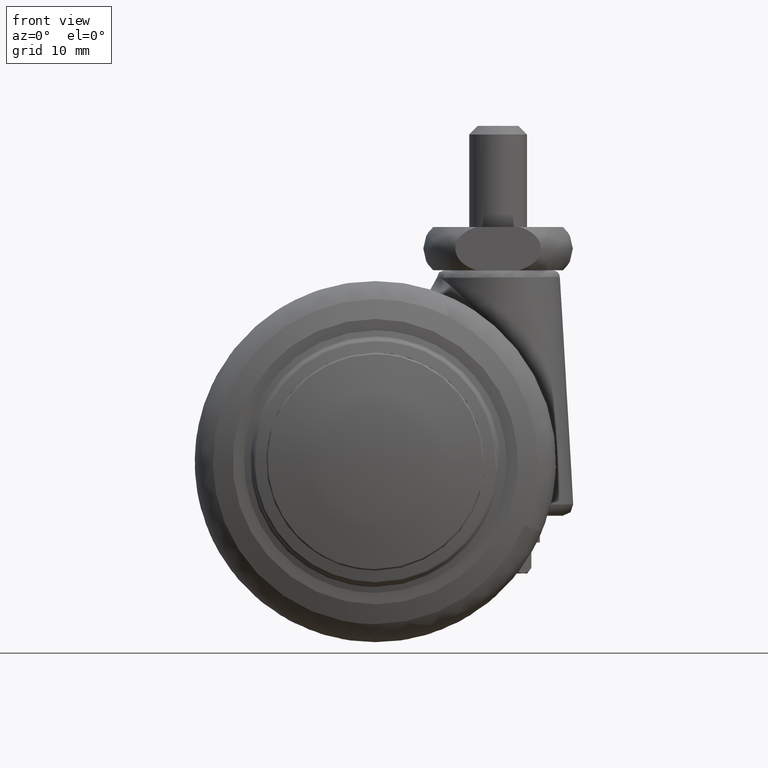
[diagram: clean part render]
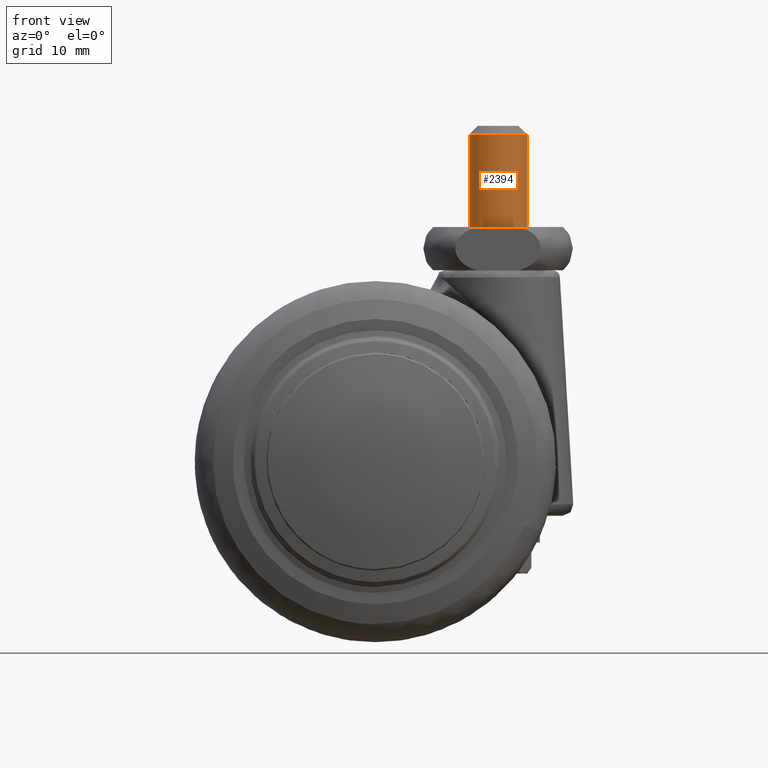
[diagram: same view with one face highlighted and labeled with its STEP entity id]
A machine part, front view. The second image highlights one B-rep face of the part: STEP entity #2394.
In plain terms, the highlighted face is a freeform B-spline surface patch.
Its self-contained STEP definition (entity closure, byte-faithful):
#2224=CARTESIAN_POINT('',(20.896872612714361,0.902432180430585,45.619999999936923));
#2225=CARTESIAN_POINT('',(21.003991040800749,0.439874574686002,45.619999999936930));
#2226=CARTESIAN_POINT('',(20.999847692256679,-0.034906141993499,45.619999999936930));
#2227=CARTESIAN_POINT('',(20.964941550263188,-4.034753834250183,45.619999999936930));
#2228=CARTESIAN_POINT('',(16.965093858006501,-3.999847692256688,45.619999999936930));
#2229=CARTESIAN_POINT('',(12.965246165749821,-3.964941550263191,45.619999999936930));
#2230=CARTESIAN_POINT('',(13.000152307743321,0.034906141993492,45.619999999936930));
#2231=CARTESIAN_POINT('',(13.035058449736812,4.034753834250176,45.619999999936930));
#2232=CARTESIAN_POINT('',(17.034906141993499,3.999847692256680,45.619999999936930));
#2233=CARTESIAN_POINT('',(20.896872612714361,0.902432180430585,32.172000002587538));
#2234=CARTESIAN_POINT('',(21.003991040800749,0.439874574686002,32.172000002587545));
#2235=CARTESIAN_POINT('',(20.999847692256679,-0.034906141993499,32.172000002587552));
#2236=CARTESIAN_POINT('',(20.964941550263188,-4.034753834250183,32.172000002587545));
#2237=CARTESIAN_POINT('',(16.965093858006501,-3.999847692256688,32.172000002587552));
#2238=CARTESIAN_POINT('',(12.965246165749821,-3.964941550263191,32.172000002587545));
#2239=CARTESIAN_POINT('',(13.000152307743321,0.034906141993492,32.172000002587552));
#2240=CARTESIAN_POINT('',(13.035058449736812,4.034753834250176,32.172000002587545));
#2241=CARTESIAN_POINT('',(17.034906141993499,3.999847692256680,32.172000002587552));
#2249=(BOUNDED_SURFACE()B_SPLINE_SURFACE(2,1,((#2224,#2233),(#2225,#2234),(#2226,#2235),(#2227,#2236),(#2228,#2237),(#2229,#2238),(#2230,#2239),(#2231,#2240),(#2232,#2241)),.UNSPECIFIED.,.F.,.F.,.U.)B_SPLINE_SURFACE_WITH_KNOTS((3,2,2,2,3),(2,2),(0.0,1.060386719675123,7.687803717644641,14.315220715614160,20.942637713583679),(0.0,13.447999997349390),.UNSPECIFIED.)GEOMETRIC_REPRESENTATION_ITEM()RATIONAL_B_SPLINE_SURFACE(((0.921270302782944,0.921270302782944),(0.953137084989848,0.953137084989848),(1.0,1.0),(0.707106781186548,0.707106781186548),(1.0,1.0),(0.707106781186548,0.707106781186548),(1.0,1.0),(0.707106781186548,0.707106781186548),(1.0,1.0)))REPRESENTATION_ITEM('')SURFACE());
#2250=CARTESIAN_POINT('',(20.896873048529041,0.902430298496366,45.299999999999997));
#2251=VERTEX_POINT('',#2250);
#2252=CARTESIAN_POINT('',(21.0,-3.459513E-015,45.299999999999997));
#2253=VERTEX_POINT('',#2252);
#2254=CARTESIAN_POINT('',(20.896873048529038,0.902430298496366,45.299999999999997));
#2255=CARTESIAN_POINT('',(21.000000000000004,0.457107664236549,45.300000000000004));
#2256=CARTESIAN_POINT('',(21.0,-3.459513E-015,45.299999999999997));
#2264=(BOUNDED_CURVE()B_SPLINE_CURVE(2,(#2254,#2255,#2256),.UNSPECIFIED.,.F.,.U.)B_SPLINE_CURVE_WITH_KNOTS((3,3),(0.461423050630074,0.500000000000000),.UNSPECIFIED.)CURVE()GEOMETRIC_REPRESENTATION_ITEM()RATIONAL_B_SPLINE_CURVE((0.923556685173517,0.954804292508155,1.0))REPRESENTATION_ITEM(''));
#2265=EDGE_CURVE('',#2251,#2253,#2264,.T.);
#2266=ORIENTED_EDGE('',*,*,#2265,.T.);
#2267=CARTESIAN_POINT('',(17.244194158336018,-3.992539193701500,45.299999999973927));
#2268=VERTEX_POINT('',#2267);
#2269=CARTESIAN_POINT('',(21.0,-3.459513E-015,45.299999999999997));
#2270=CARTESIAN_POINT('',(21.0,-3.762824267254542,45.299999999999990));
#2271=CARTESIAN_POINT('',(17.244194158336018,-3.992539193701500,45.299999999973934));
#2279=(BOUNDED_CURVE()B_SPLINE_CURVE(2,(#2269,#2270,#2271),.UNSPECIFIED.,.F.,.U.)B_SPLINE_CURVE_WITH_KNOTS((3,3),(0.500000000000000,0.739332962225114),.UNSPECIFIED.)CURVE()GEOMETRIC_REPRESENTATION_ITEM()RATIONAL_B_SPLINE_CURVE((1.0,0.719603993302912,0.976072041637080))REPRESENTATION_ITEM(''));
#2280=EDGE_CURVE('',#2253,#2268,#2279,.T.);
#2281=ORIENTED_EDGE('',*,*,#2280,.T.);
#2282=CARTESIAN_POINT('',(13.0,-3.459513E-015,45.299999999999997));
#2283=VERTEX_POINT('',#2282);
#2284=CARTESIAN_POINT('',(17.244194158336018,-3.992539193701500,45.299999999973934));
#2285=CARTESIAN_POINT('',(17.122211053389911,-4.000000000000004,45.299999999999990));
#2286=CARTESIAN_POINT('',(17.0,-4.000000000000004,45.299999999999997));
#2287=CARTESIAN_POINT('',(13.000000000000004,-4.000000000000004,45.299999999999990));
#2288=CARTESIAN_POINT('',(13.0,-3.459513E-015,45.299999999999997));
#2296=(BOUNDED_CURVE()B_SPLINE_CURVE(2,(#2284,#2285,#2286,#2287,#2288),.UNSPECIFIED.,.F.,.U.)B_SPLINE_CURVE_WITH_KNOTS((3,2,3),(0.739332962225113,0.750000000000000,1.0),.UNSPECIFIED.)CURVE()GEOMETRIC_REPRESENTATION_ITEM()RATIONAL_B_SPLINE_CURVE((0.976072041637077,0.987502787883635,1.0,0.707106781186548,1.0))REPRESENTATION_ITEM(''));
#2297=EDGE_CURVE('',#2268,#2283,#2296,.T.);
#2298=ORIENTED_EDGE('',*,*,#2297,.T.);
#2299=CARTESIAN_POINT('',(16.527863060947670,3.972038105458000,45.299999999946429));
#2300=VERTEX_POINT('',#2299);
#2301=CARTESIAN_POINT('',(13.0,-3.459513E-015,45.299999999999997));
#2302=CARTESIAN_POINT('',(13.000000000000004,3.552698103050708,45.299999999999990));
#2303=CARTESIAN_POINT('',(16.527863060947670,3.972038105458000,45.299999999946429));
#2311=(BOUNDED_CURVE()B_SPLINE_CURVE(2,(#2301,#2302,#2303),.UNSPECIFIED.,.F.,.U.)B_SPLINE_CURVE_WITH_KNOTS((3,3),(0.0,0.229562473479991),.UNSPECIFIED.)CURVE()GEOMETRIC_REPRESENTATION_ITEM()RATIONAL_B_SPLINE_CURVE((1.0,0.731050832894670,0.956026754118004))REPRESENTATION_ITEM(''));
#2312=EDGE_CURVE('',#2283,#2300,#2311,.T.);
#2313=ORIENTED_EDGE('',*,*,#2312,.T.);
#2314=CARTESIAN_POINT('',(17.034906142311339,3.999847692253908,45.299999999999997));
#2315=VERTEX_POINT('',#2314);
#2316=CARTESIAN_POINT('',(16.527863060947674,3.972038105458001,45.299999999946436));
#2317=CARTESIAN_POINT('',(16.763103520968958,3.999999999999997,45.299999999999997));
#2318=CARTESIAN_POINT('',(17.0,3.999999999999996,45.299999999999997));
#2319=CARTESIAN_POINT('',(17.017453403600669,3.999999999999996,45.299999999999997));
#2320=CARTESIAN_POINT('',(17.034906142311339,3.999847692253908,45.299999999999997));
#2328=(BOUNDED_CURVE()B_SPLINE_CURVE(2,(#2316,#2317,#2318,#2319,#2320),.UNSPECIFIED.,.F.,.U.)B_SPLINE_CURVE_WITH_KNOTS((3,2,3),(0.229562473479991,0.250000000000000,0.251539894362981),.UNSPECIFIED.)CURVE()GEOMETRIC_REPRESENTATION_ITEM()RATIONAL_B_SPLINE_CURVE((0.956026754118004,0.976055948291877,1.0,0.998195901533575,0.996414028035619))REPRESENTATION_ITEM(''));
#2329=EDGE_CURVE('',#2300,#2315,#2328,.T.);
#2330=ORIENTED_EDGE('',*,*,#2329,.T.);
#2331=CARTESIAN_POINT('',(17.034906142190941,3.999847692254958,32.500000002522903));
#2332=VERTEX_POINT('',#2331);
#2333=CARTESIAN_POINT('',(17.034906142311339,3.999847692253908,45.299999999999997));
#2334=CARTESIAN_POINT('',(17.034906142190941,3.999847692254958,32.500000002522903));
#2335=QUASI_UNIFORM_CURVE('',1,(#2333,#2334),.UNSPECIFIED.,.F.,.U.);
#2336=EDGE_CURVE('',#2315,#2332,#2335,.T.);
#2337=ORIENTED_EDGE('',*,*,#2336,.T.);
#2338=CARTESIAN_POINT('',(13.0,-3.459513E-015,32.500000002522903));
#2339=VERTEX_POINT('',#2338);
#2340=CARTESIAN_POINT('',(17.034906142190941,3.999847692254959,32.500000002522903));
#2341=CARTESIAN_POINT('',(17.017453403480257,3.999999999999996,32.500000002522910));
#2342=CARTESIAN_POINT('',(17.0,3.999999999999996,32.500000002522903));
#2343=CARTESIAN_POINT('',(13.000000000000004,3.999999999999997,32.500000002522903));
#2344=CARTESIAN_POINT('',(13.0,-3.459513E-015,32.500000002522903));
#2352=(BOUNDED_CURVE()B_SPLINE_CURVE(2,(#2340,#2341,#2342,#2343,#2344),.UNSPECIFIED.,.F.,.U.)B_SPLINE_CURVE_WITH_KNOTS((3,2,3),(0.248460105647623,0.250000000000000,0.500000000000000),.UNSPECIFIED.)CURVE()GEOMETRIC_REPRESENTATION_ITEM()RATIONAL_B_SPLINE_CURVE((0.996414028060161,0.998195901545999,1.0,0.707106781186548,1.0))REPRESENTATION_ITEM(''));
#2353=EDGE_CURVE('',#2332,#2339,#2352,.T.);
#2354=ORIENTED_EDGE('',*,*,#2353,.T.);
#2355=CARTESIAN_POINT('',(21.0,-3.459513E-015,32.500000002522903));
#2356=VERTEX_POINT('',#2355);
#2357=CARTESIAN_POINT('',(13.0,-3.459513E-015,32.500000002522903));
#2358=CARTESIAN_POINT('',(13.000000000000004,-4.000000000000004,32.500000002522903));
#2359=CARTESIAN_POINT('',(17.0,-4.000000000000004,32.500000002522903));
#2360=CARTESIAN_POINT('',(21.000000000000004,-4.000000000000004,32.500000002522903));
#2361=CARTESIAN_POINT('',(21.0,-3.459513E-015,32.500000002522903));
#2369=(BOUNDED_CURVE()B_SPLINE_CURVE(2,(#2357,#2358,#2359,#2360,#2361),.UNSPECIFIED.,.F.,.U.)B_SPLINE_CURVE_WITH_KNOTS((3,2,3),(0.500000000000000,0.750000000000000,1.0),.UNSPECIFIED.)CURVE()GEOMETRIC_REPRESENTATION_ITEM()RATIONAL_B_SPLINE_CURVE((1.0,0.707106781186548,1.0,0.707106781186548,1.0))REPRESENTATION_ITEM(''));
#2370=EDGE_CURVE('',#2339,#2356,#2369,.T.);
#2371=ORIENTED_EDGE('',*,*,#2370,.T.);
#2372=CARTESIAN_POINT('',(20.896872612694420,0.902432180516741,32.500000002522903));
#2373=VERTEX_POINT('',#2372);
#2374=CARTESIAN_POINT('',(21.0,-3.459513E-015,32.500000002522903));
#2375=CARTESIAN_POINT('',(20.999999999999993,0.457108642808543,32.500000002522896));
#2376=CARTESIAN_POINT('',(20.896872612694413,0.902432180516741,32.500000002522910));
#2384=(BOUNDED_CURVE()B_SPLINE_CURVE(2,(#2374,#2375,#2376),.UNSPECIFIED.,.F.,.U.)B_SPLINE_CURVE_WITH_KNOTS((3,3),(0.0,0.038577028222610),.UNSPECIFIED.)CURVE()GEOMETRIC_REPRESENTATION_ITEM()RATIONAL_B_SPLINE_CURVE((1.0,0.954804200126489,0.923556557431090))REPRESENTATION_ITEM(''));
#2385=EDGE_CURVE('',#2356,#2373,#2384,.T.);
#2386=ORIENTED_EDGE('',*,*,#2385,.T.);
#2387=CARTESIAN_POINT('',(20.896873048529041,0.902430298496366,45.299999999999997));
#2388=CARTESIAN_POINT('',(20.896872612694420,0.902432180516741,32.500000002522903));
#2389=QUASI_UNIFORM_CURVE('',1,(#2387,#2388),.UNSPECIFIED.,.F.,.U.);
#2390=EDGE_CURVE('',#2251,#2373,#2389,.T.);
#2391=ORIENTED_EDGE('',*,*,#2390,.F.);
#2392=EDGE_LOOP('',(#2266,#2281,#2298,#2313,#2330,#2337,#2354,#2371,#2386,#2391));
#2393=FACE_OUTER_BOUND('',#2392,.T.);
#2394=ADVANCED_FACE('',(#2393),#2249,.T.);